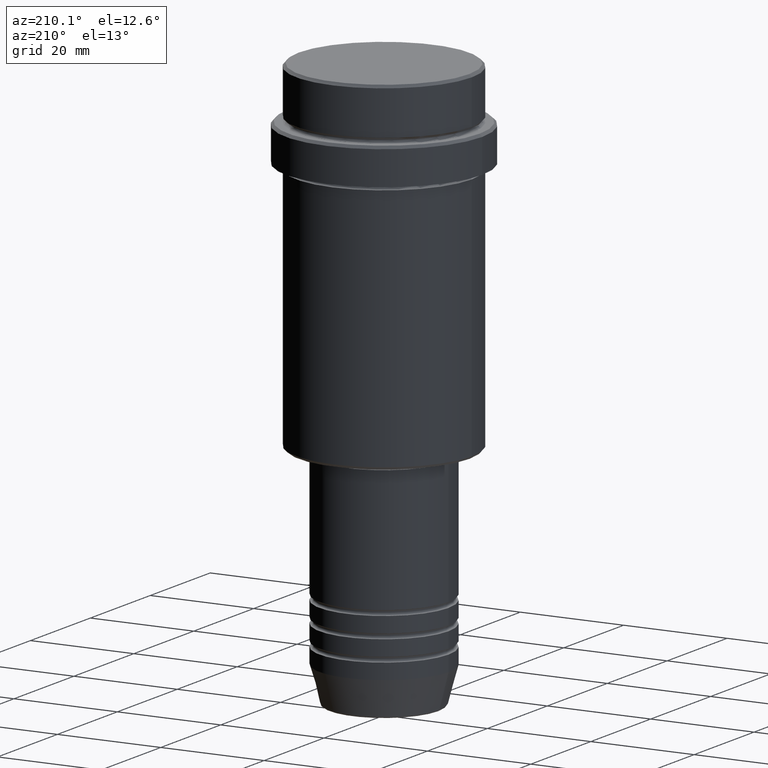
[diagram: clean part render]
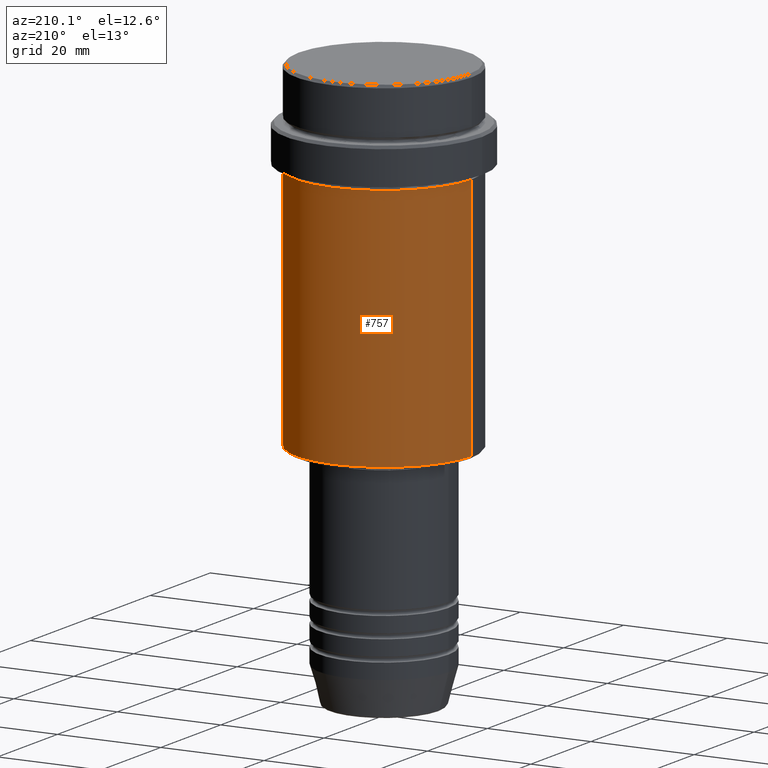
[diagram: same view with one face highlighted and labeled with its STEP entity id]
A machine part, auxiliary view. The second image highlights one B-rep face of the part: STEP entity #757.
In plain terms, the highlighted cylindrical surface (partial cylindrical patch) has radius 17 mm, axis along (-0, -0, 1).
Its self-contained STEP definition (entity closure, byte-faithful):
#10 = CARTESIAN_POINT ( 'NONE',  ( 0.000000000000000000, 0.000000000000000000, -18.00000000000000711 ) ) ;
#25 = DIRECTION ( 'NONE',  ( -0.000000000000000000, -0.000000000000000000, 1.000000000000000000 ) ) ;
#117 = VECTOR ( 'NONE', #327, 1000.000000000000000 ) ;
#204 = CARTESIAN_POINT ( 'NONE',  ( 0.000000000000000000, 0.000000000000000000, -65.49999999999998579 ) ) ;
#224 = CARTESIAN_POINT ( 'NONE',  ( 16.99999999999999645, 0.000000000000000000, 0.000000000000000000 ) ) ;
#248 = DIRECTION ( 'NONE',  ( -0.000000000000000000, -0.000000000000000000, 1.000000000000000000 ) ) ;
#258 = ORIENTED_EDGE ( 'NONE', *, *, #1204, .F. ) ;
#309 = CIRCLE ( 'NONE', #1127, 16.99999999999999289 ) ;
#327 = DIRECTION ( 'NONE',  ( -0.000000000000000000, -0.000000000000000000, 1.000000000000000000 ) ) ;
#350 = VERTEX_POINT ( 'NONE', #601 ) ;
#431 = EDGE_CURVE ( 'NONE', #1371, #350, #552, .T. ) ;
#439 = DIRECTION ( 'NONE',  ( 1.000000000000000000, 0.000000000000000000, 0.000000000000000000 ) ) ;
#461 = CARTESIAN_POINT ( 'NONE',  ( 0.000000000000000000, 0.000000000000000000, 0.000000000000000000 ) ) ;
#463 = CARTESIAN_POINT ( 'NONE',  ( -16.99999999999999645, 2.081899558550499885E-15, 0.000000000000000000 ) ) ;
#465 = ORIENTED_EDGE ( 'NONE', *, *, #1050, .F. ) ;
#552 = LINE ( 'NONE', #463, #1384 ) ;
#557 = FACE_OUTER_BOUND ( 'NONE', #1274, .T. ) ;
#598 = VERTEX_POINT ( 'NONE', #1267 ) ;
#601 = CARTESIAN_POINT ( 'NONE',  ( -16.99999999999999289, 2.081899558550499885E-15, -18.00000000000000711 ) ) ;
#602 = EDGE_CURVE ( 'NONE', #609, #1371, #1311, .T. ) ;
#609 = VERTEX_POINT ( 'NONE', #1128 ) ;
#611 = AXIS2_PLACEMENT_3D ( 'NONE', #461, #248, #1218 ) ;
#681 = AXIS2_PLACEMENT_3D ( 'NONE', #204, #879, #762 ) ;
#703 = CARTESIAN_POINT ( 'NONE',  ( -16.99999999999999645, 2.081899558550499885E-15, -65.49999999999998579 ) ) ;
#754 = ORIENTED_EDGE ( 'NONE', *, *, #602, .T. ) ;
#757 = ADVANCED_FACE ( 'NONE', ( #557 ), #1015, .T. ) ;
#762 = DIRECTION ( 'NONE',  ( -1.000000000000000000, 0.000000000000000000, 0.000000000000000000 ) ) ;
#879 = DIRECTION ( 'NONE',  ( -0.000000000000000000, -0.000000000000000000, 1.000000000000000000 ) ) ;
#988 = LINE ( 'NONE', #224, #117 ) ;
#1015 = CYLINDRICAL_SURFACE ( 'NONE', #611, 16.99999999999999645 ) ;
#1050 = EDGE_CURVE ( 'NONE', #598, #350, #309, .T. ) ;
#1127 = AXIS2_PLACEMENT_3D ( 'NONE', #10, #25, #439 ) ;
#1128 = CARTESIAN_POINT ( 'NONE',  ( 16.99999999999999645, 0.000000000000000000, -65.49999999999998579 ) ) ;
#1204 = EDGE_CURVE ( 'NONE', #609, #598, #988, .T. ) ;
#1218 = DIRECTION ( 'NONE',  ( 1.000000000000000000, 0.000000000000000000, 0.000000000000000000 ) ) ;
#1253 = ORIENTED_EDGE ( 'NONE', *, *, #431, .T. ) ;
#1267 = CARTESIAN_POINT ( 'NONE',  ( 16.99999999999999289, 0.000000000000000000, -18.00000000000000711 ) ) ;
#1274 = EDGE_LOOP ( 'NONE', ( #754, #1253, #465, #258 ) ) ;
#1311 = CIRCLE ( 'NONE', #681, 16.99999999999999645 ) ;
#1343 = DIRECTION ( 'NONE',  ( -0.000000000000000000, -0.000000000000000000, 1.000000000000000000 ) ) ;
#1371 = VERTEX_POINT ( 'NONE', #703 ) ;
#1384 = VECTOR ( 'NONE', #1343, 1000.000000000000000 ) ;